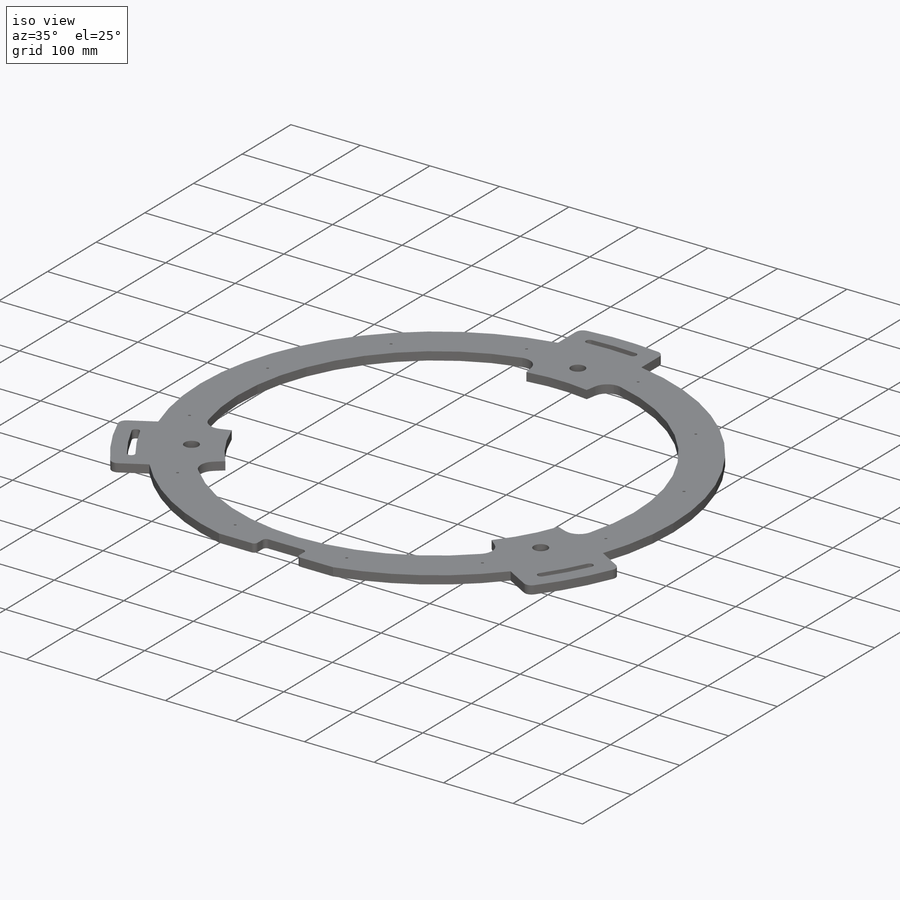
[diagram: iso view]
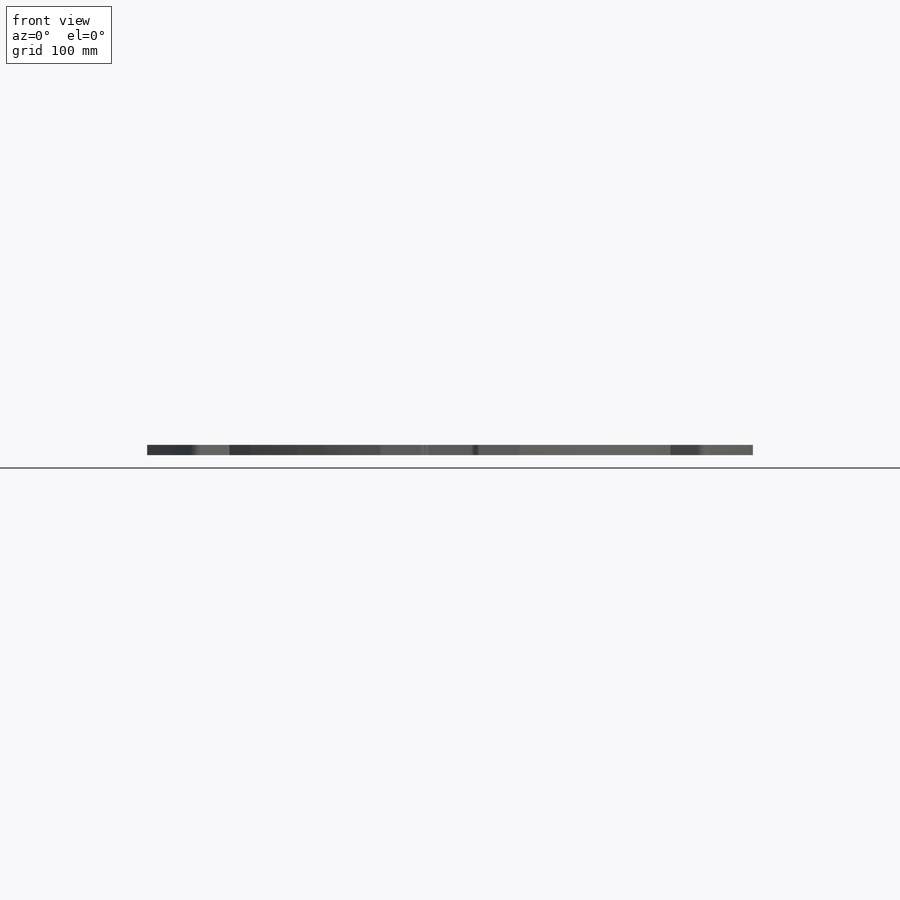
[diagram: front view]
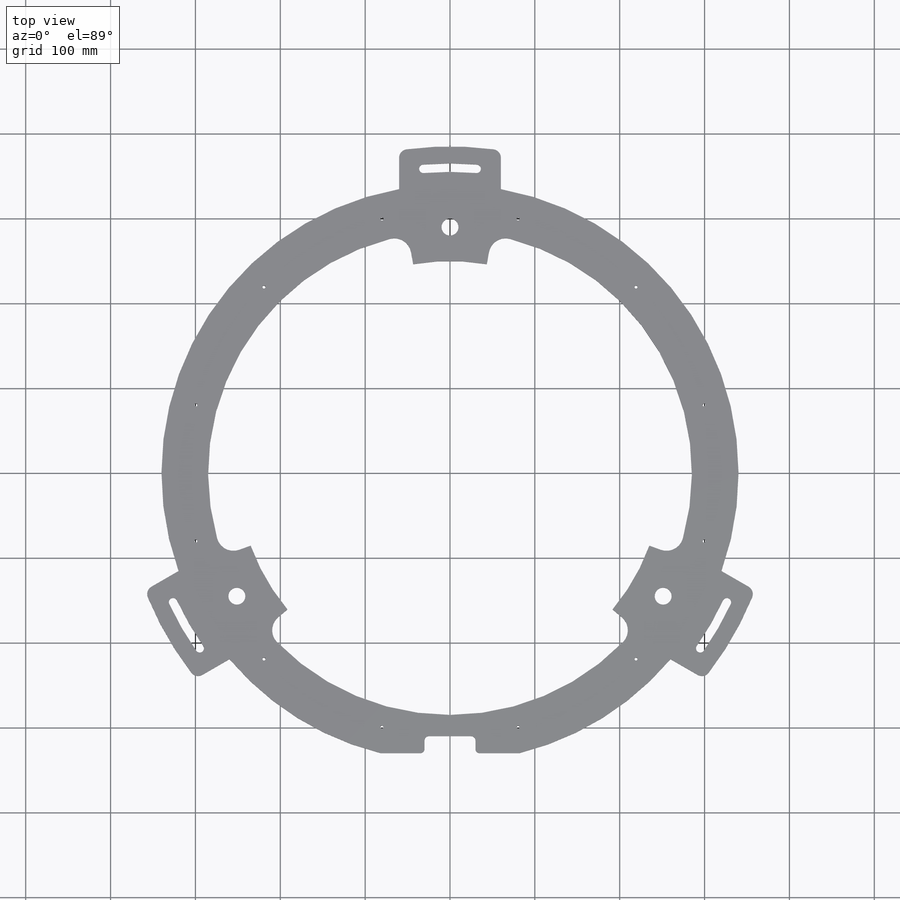
[diagram: top view]
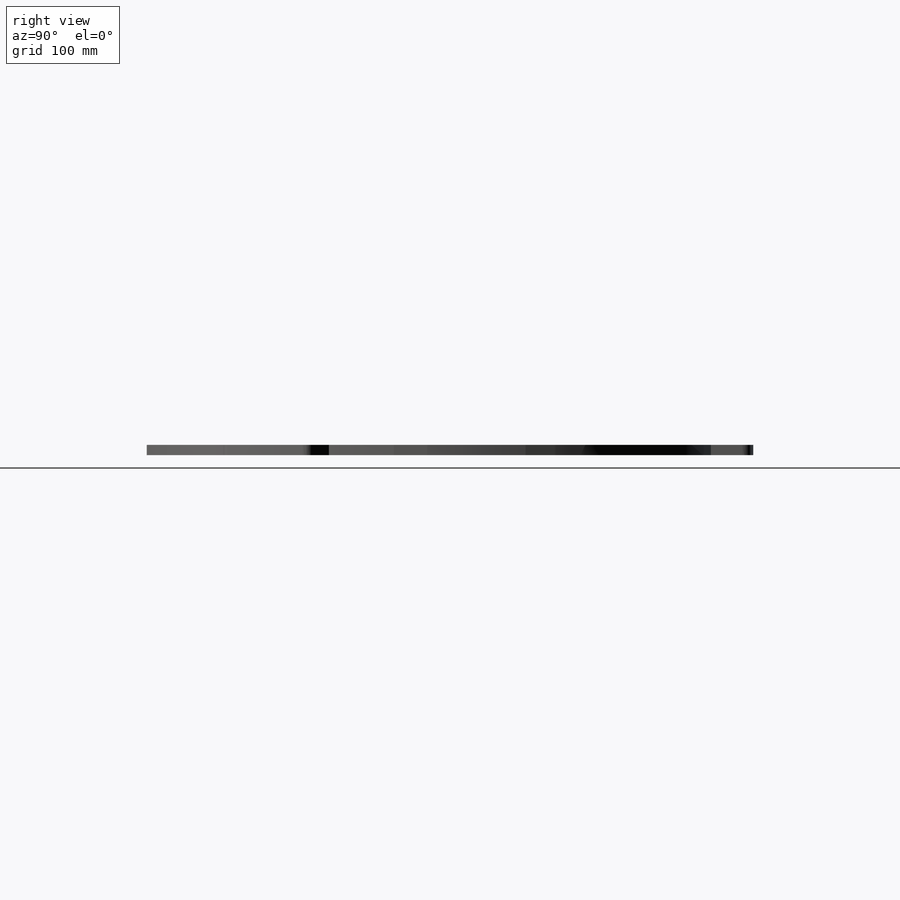
[diagram: right view]
SOLIDWORKS PART (.sldprt)
format: sldprt  version: not decoded by parser v0  size: 1,806,848 bytes
history: native  units: mm
features: sketch x11, cut_extrude x7, extrude x2, pattern_circular x2, material x1, fillet x1, hole x1 (+12 scaffold rows collapsed)
feature tree (37):
  scaffold x12  (default folders/planes/origin — collapsed)
  material  "Material <not specified>"
  sketch  "Sketch1"  dims[D1=500.0mm]
  extrude  "Boss-Extrude1"  Depth=12mm
  sketch  "Sketch2"  dims[c1.D2=10.0mm c1.D3=~363.122599mm c1.D4=~363.122599mm c1.D5=385.0mm c1.D1=~320.99363mm c2.D1=45.0deg c2.D3=10.0mm c2.D4=360.0mm c2.D6=60.0mm c2.D7=10.0mm c3.D7=5.0deg c3.D1=~371.651719mm c4.D1=60.0deg c5.D1=~556.201437mm c6.D1=30.0deg]
  extrude  "Boss-Extrude2"  Depth=12mm
  pattern_circular  "CirPattern1"  Count=3 Angle=360deg
  sketch  "Sketch6"  dims[c1.D3=~234.923155mm c2.D3=100.0deg c2.D1=0.0mm c2.D2=0.0mm]
  cut_extrude  "Cut-Extrude1"  Depth=12mm
  pattern_circular  "CirPattern2"  Count=3 Angle=360deg
  sketch  "Sketch7"  dims[D1=330.0mm]
  cut_extrude  "Cut-Extrude2"  Depth=12mm
  sketch  "Sketch8"  dims[D1=20.0mm D2=290.0mm D3=3.0]
  cut_extrude  "Cut-Extrude3"  Depth=12mm
  sketch  "Sketch9"  dims[D1=60.0mm D2=310.0mm]
  cut_extrude  "Cut-Extrude4"  Depth=12mm
  fillet  "Fillet1"  Radius=5mm
  hole  "CSK for M4 Flat Head Machine Screw"  Diameter=4.5mm Depth=48mm
  sketch  "Sketch10"  dims[c1.D1=310.0mm c1.D2=~423.706896mm c2.D2=15.0deg]
  sketch  "Sketch11"  dims[Thru Hole Dia.=4.5mm Thru Hole Depth=48.0mm Near C'Sink Dia.=9.4mm Near C'Sink Angle=90.0deg]
  sketch  "Sketch12"  dims[c1.D2=500.0mm c1.D1=~412.081454mm c2.D1=120.0deg c2.D3=~384.010443mm c3.D3=40.0deg]
  cut_extrude  "Cut-Extrude5"  Depth=12mm
  sketch  "Sketch13"  dims[c1.D3=500.0mm c1.D1=~454.444968mm c2.D1=160.0deg c2.D2=~249.399045mm c3.D2=120.0deg]
  cut_extrude  "Cut-Extrude6"  Depth=12mm
  sketch  "Sketch14"  dims[c1.D1=~418.968383mm c2.D1=120.0deg c2.D2=500.0mm c2.D3=~470.84603mm c3.D3=40.0deg]
  cut_extrude  "Cut-Extrude7"  Depth=12mm
decode coverage: 24 of 24 modeling features carry decoded parameters
note: ~ marks probable driven/reference dimensions
note: suppression state not decoded; provenance and decode notes live in map.json
